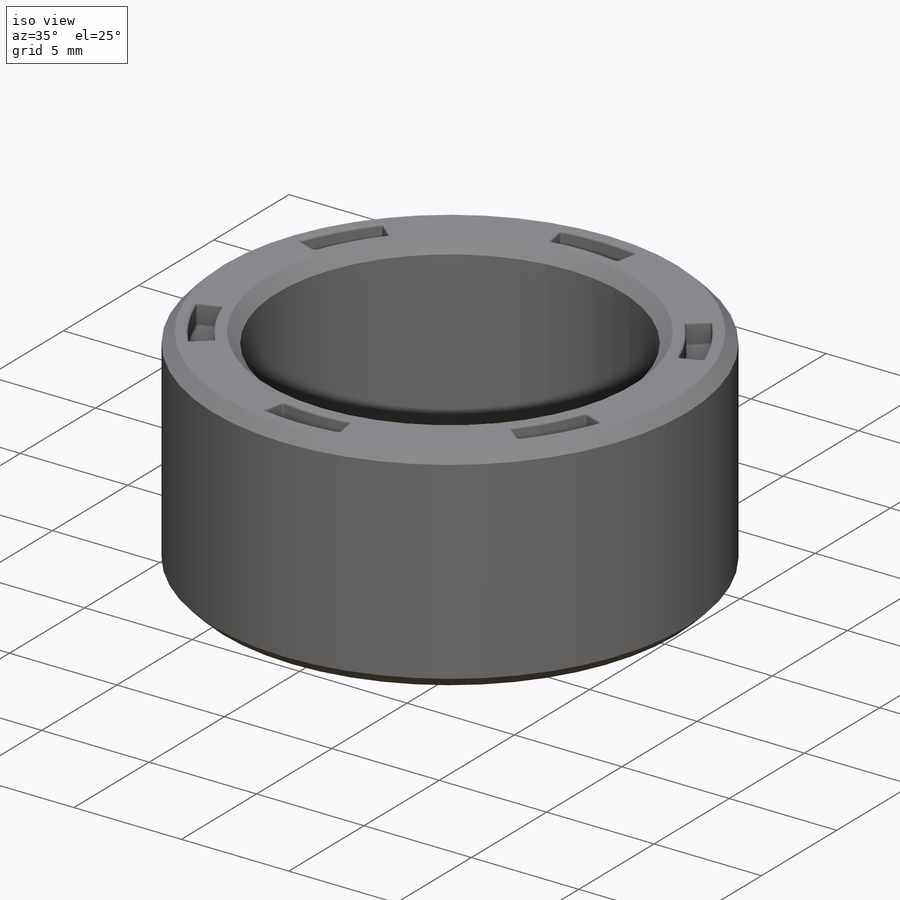
[diagram: iso view]
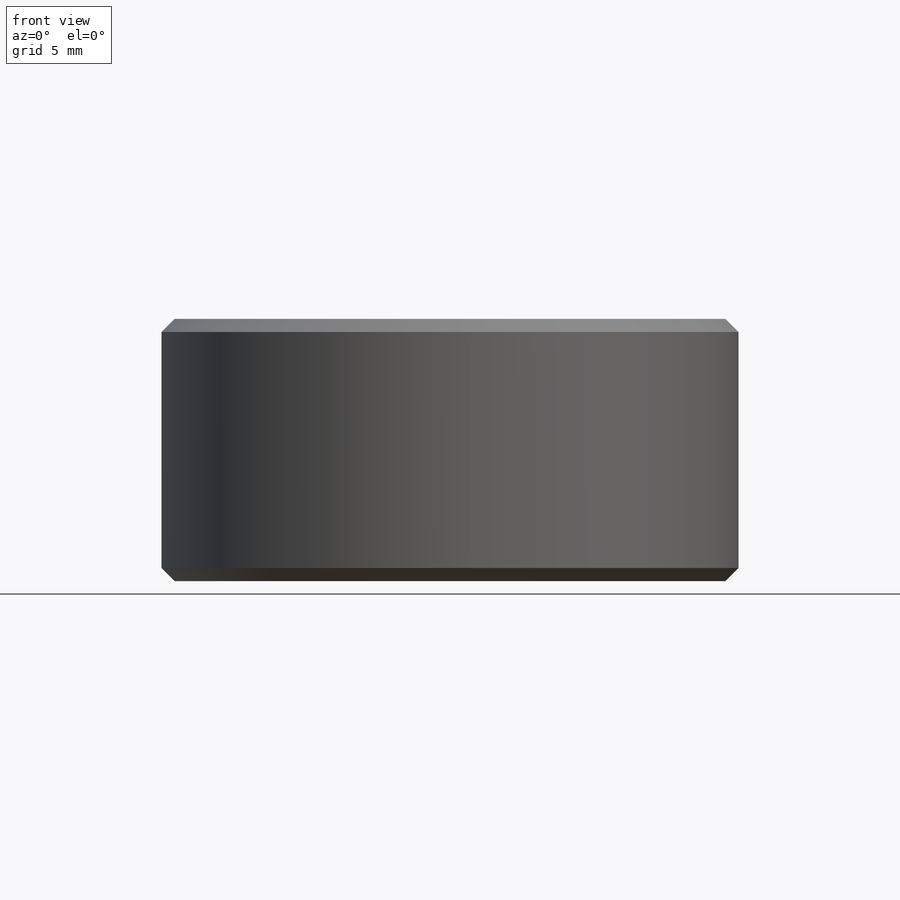
[diagram: front view]
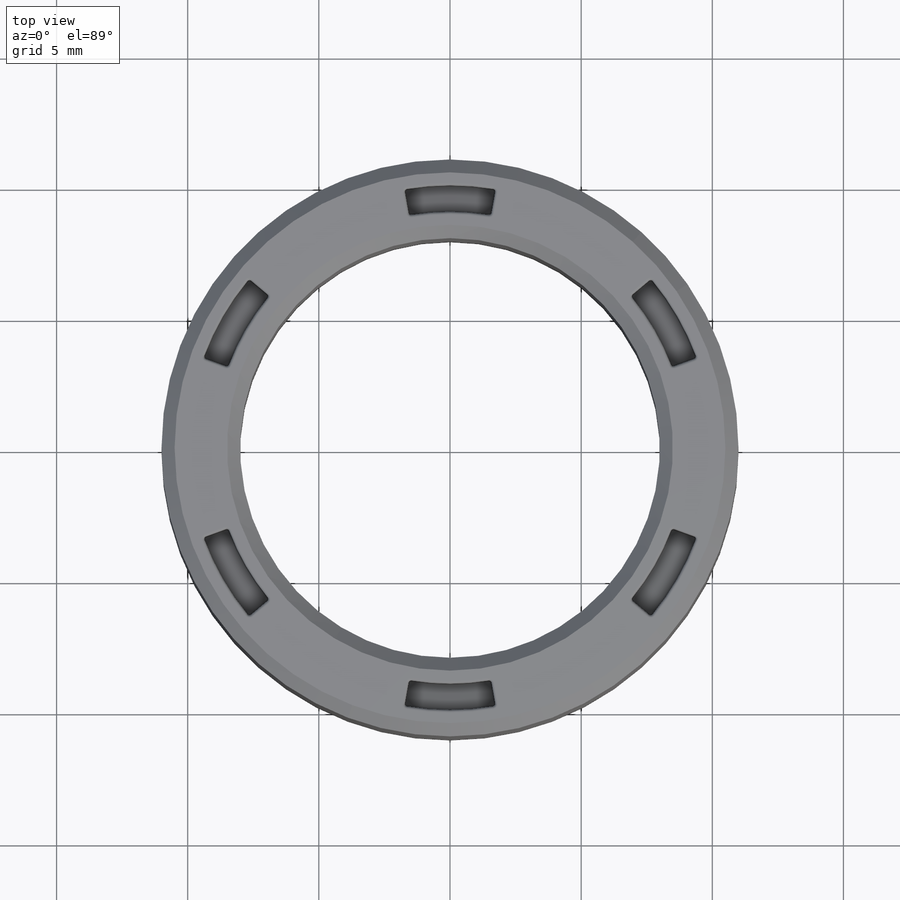
[diagram: top view]
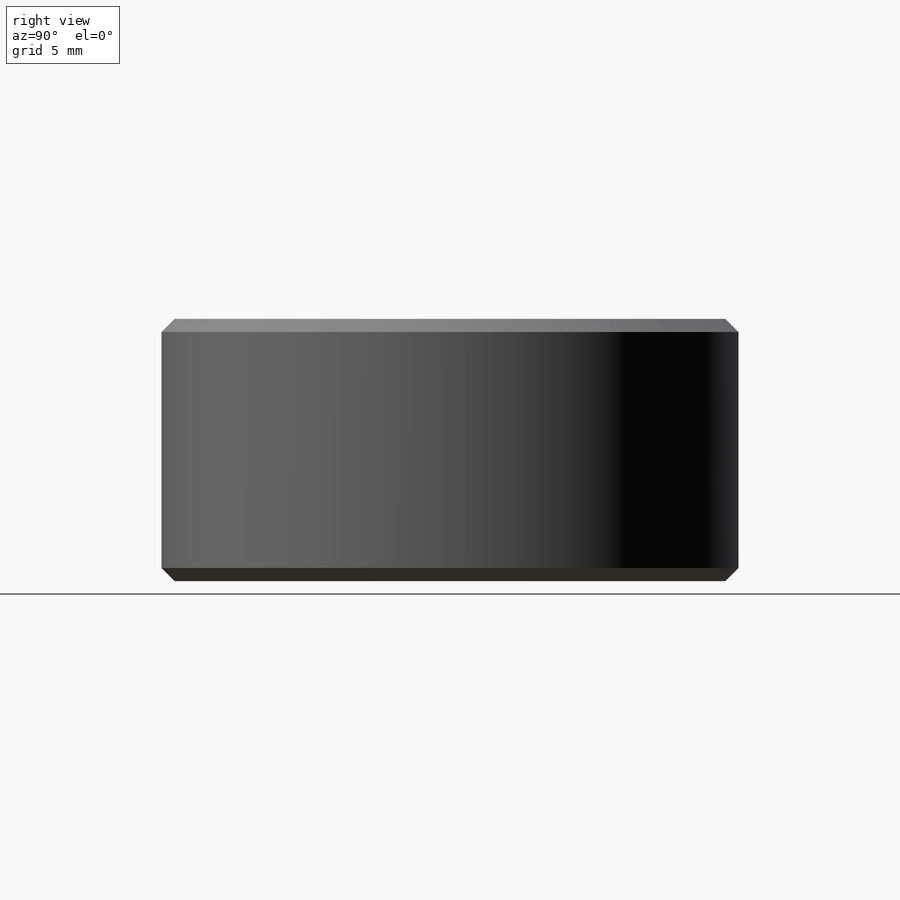
[diagram: right view]
SOLIDWORKS PART (.sldprt)
format: sldprt  version: not decoded by parser v0  size: 390,656 bytes
history: native  units: mm
features: sketch x2, material x1, extrude x1, chamfer x1, cut_extrude x1, fillet x1, pattern_circular x1 (+11 scaffold rows collapsed)
feature tree (19):
  scaffold x11  (default folders/planes/origin — collapsed)
  material  "Material <not specified>"
  sketch  "Sketch1"  dims[D1=22.0mm D2=16.0mm]
  extrude  "Boss-Extrude1"  Depth=10mm
  chamfer  "Chamfer1"  Distance=0.5mm Angle=45deg
  sketch  "Sketch2"  dims[c1.D1=18.0mm c1.D2=20.0mm c1.D3=13.0mm c2.D3=10.0deg]
  cut_extrude  "Cut-Extrude1"  Depth=1mm
  fillet  "Fillet1"  Radius=0.1mm
  pattern_circular  "CirPattern1"  Count=6 Angle=360deg
decode coverage: 7 of 7 modeling features carry decoded parameters
note: suppression state not decoded; provenance and decode notes live in map.json
